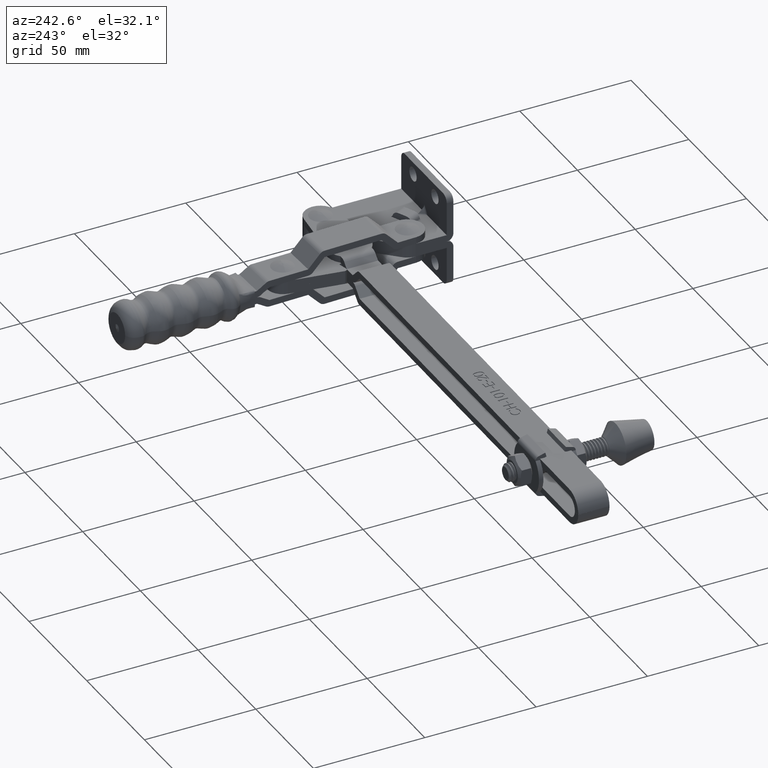
[diagram: clean part render]
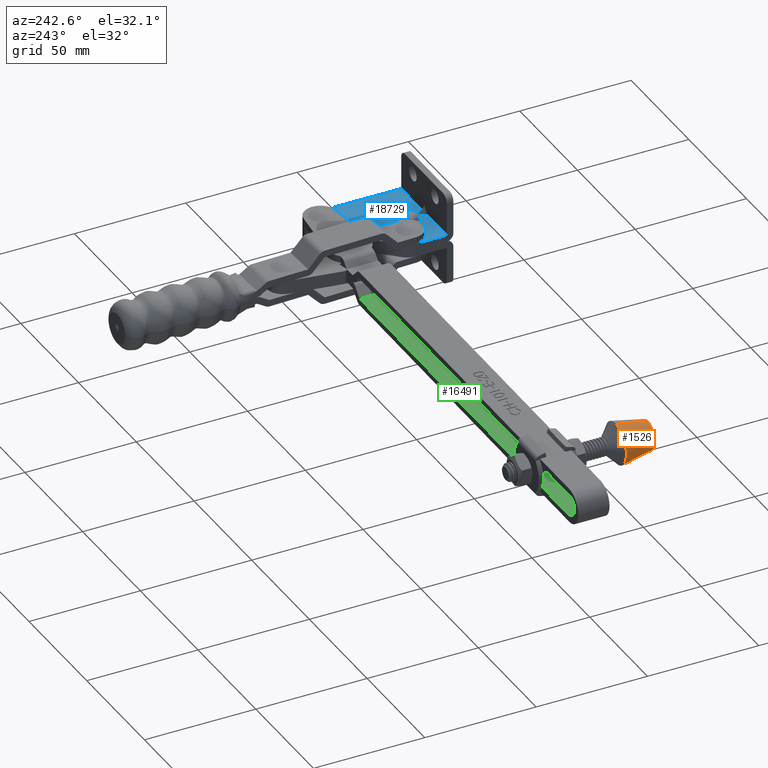
[diagram: same view with three faces highlighted in distinct colors, each labeled with its STEP entity id]
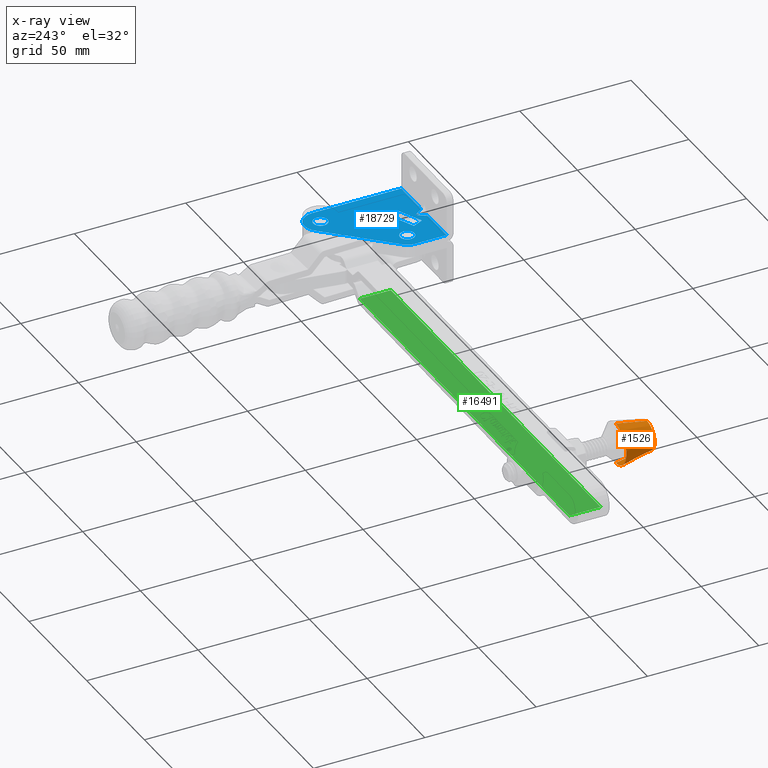
[diagram: x-ray of the same camera — body ghosted, the three highlighted faces saturated]
A machine part, auxiliary view with three faces highlighted in distinct colors.
The next image is the same camera in x-ray (body ghosted, the three faces saturated) — at least one of them is partly hidden behind the body in this view.
Their STEP definitions:

[orange] entity #1526 — the highlighted conical surface has half-angle 11.113 deg.
#1277 = EDGE_LOOP ( 'NONE', ( #1525, #1533, #1531, #1359 ) ) ;
#1330 = EDGE_CURVE ( 'NONE', #15270, #15269, #41257, .T. ) ;
#1349 = EDGE_CURVE ( 'NONE', #15265, #15273, #41279, .T. ) ;
#1359 = ORIENTED_EDGE ( 'NONE', *, *, #1349, .F. ) ;
#1525 = ORIENTED_EDGE ( 'NONE', *, *, #15263, .F. ) ;
#1526 = ADVANCED_FACE ( 'NONE', ( #41412 ), #38679, .T. ) ;
#1531 = ORIENTED_EDGE ( 'NONE', *, *, #15326, .T. ) ;
#1533 = ORIENTED_EDGE ( 'NONE', *, *, #1330, .T. ) ;
#10505 = CARTESIAN_POINT ( 'NONE',  ( 0.0000000000000000000, -6.500000000000000900, -8.500000000000001800 ) ) ;
#10531 = CARTESIAN_POINT ( 'NONE',  ( 1.132798289211310000E-015, -9.250000000000007100, 5.499999999999998200 ) ) ;
#10542 = CARTESIAN_POINT ( 'NONE',  ( 9.644093543285448100E-016, 6.500000000000000900, -8.500000000000062200 ) ) ;
#10551 = CARTESIAN_POINT ( 'NONE',  ( 0.0000000000000000000, 9.250000000000131500, 5.499999999999913000 ) ) ;
#10552 = DIRECTION ( 'NONE',  ( 2.360449196321649300E-017, 0.1927453040309370600, 0.9812488205210855300 ) ) ;
#10553 = VECTOR ( 'NONE', #10552, 1000.000000000000100 ) ;
#10554 = CARTESIAN_POINT ( 'NONE',  ( 1.132798289211310000E-015, 9.250000000000131500, 5.499999999999913000 ) ) ;
#10555 = LINE ( 'NONE', #10554, #10553 ) ;
#10683 = DIRECTION ( 'NONE',  ( 0.0000000000000000000, -0.1927453040309279900, 0.9812488205210874200 ) ) ;
#10684 = VECTOR ( 'NONE', #10683, 1000.000000000000000 ) ;
#10685 = CARTESIAN_POINT ( 'NONE',  ( 0.0000000000000000000, -9.250000000000003600, 5.499999999999998200 ) ) ;
#10686 = LINE ( 'NONE', #10685, #10684 ) ;
#15263 = EDGE_CURVE ( 'NONE', #15270, #15265, #10555, .T. ) ;
#15265 = VERTEX_POINT ( 'NONE', #10551 ) ;
#15269 = VERTEX_POINT ( 'NONE', #10505 ) ;
#15270 = VERTEX_POINT ( 'NONE', #10542 ) ;
#15273 = VERTEX_POINT ( 'NONE', #10531 ) ;
#15326 = EDGE_CURVE ( 'NONE', #15269, #15273, #10686, .T. ) ;
#38679 = CONICAL_SURFACE ( 'NONE', #38728, 9.250000000000067500, 0.1939591472598978500 ) ;
#38725 = DIRECTION ( 'NONE',  ( 0.0000000000000000000, -1.000000000000000000, 4.594672990425022900E-015 ) ) ;
#38726 = DIRECTION ( 'NONE',  ( -0.0000000000000000000, 4.625929269271484500E-015, 1.000000000000000000 ) ) ;
#38727 = CARTESIAN_POINT ( 'NONE',  ( 0.0000000000000000000, 6.476300976980058800E-014, 5.499999999999955600 ) ) ;
#38728 = AXIS2_PLACEMENT_3D ( 'NONE', #38727, #38726, #38725 ) ;
#41242 = CARTESIAN_POINT ( 'NONE',  ( 0.0000000000000000000, 6.476300976980058800E-014, 5.499999999999955600 ) ) ;
#41253 = DIRECTION ( 'NONE',  ( 0.0000000000000000000, -1.000000000000000000, 4.536969091016264500E-015 ) ) ;
#41254 = DIRECTION ( 'NONE',  ( -0.0000000000000000000, 4.625929269271484500E-015, 1.000000000000000000 ) ) ;
#41255 = CARTESIAN_POINT ( 'NONE',  ( 0.0000000000000000000, -1.355854680848614000E-028, -8.500000000000032000 ) ) ;
#41256 = AXIS2_PLACEMENT_3D ( 'NONE', #41255, #41254, #41253 ) ;
#41257 = CIRCLE ( 'NONE', #41256, 6.500000000000000900 ) ;
#41274 = DIRECTION ( 'NONE',  ( 0.0000000000000000000, -1.000000000000000000, 4.594672990425022900E-015 ) ) ;
#41275 = DIRECTION ( 'NONE',  ( -0.0000000000000000000, 4.625929269271484500E-015, 1.000000000000000000 ) ) ;
#41276 = AXIS2_PLACEMENT_3D ( 'NONE', #41242, #41275, #41274 ) ;
#41279 = CIRCLE ( 'NONE', #41276, 9.250000000000067500 ) ;
#41412 = FACE_OUTER_BOUND ( 'NONE', #1277, .T. ) ;

[blue] entity #18729 — the highlighted planar face has unit normal (0, 0, 1).
#13801 = ORIENTED_EDGE ( 'NONE', *, *, #18728, .F. ) ;
#18646 = ORIENTED_EDGE ( 'NONE', *, *, #18730, .F. ) ;
#18647 = EDGE_LOOP ( 'NONE', ( #18651, #13801 ) ) ;
#18648 = VERTEX_POINT ( 'NONE', #31158 ) ;
#18649 = VERTEX_POINT ( 'NONE', #31191 ) ;
#18650 = ORIENTED_EDGE ( 'NONE', *, *, #18699, .T. ) ;
#18651 = ORIENTED_EDGE ( 'NONE', *, *, #18656, .F. ) ;
#18654 = EDGE_CURVE ( 'NONE', #18695, #18703, #31173, .T. ) ;
#18656 = EDGE_CURVE ( 'NONE', #18665, #18658, #31186, .T. ) ;
#18658 = VERTEX_POINT ( 'NONE', #31225 ) ;
#18660 = ORIENTED_EDGE ( 'NONE', *, *, #18672, .F. ) ;
#18663 = VERTEX_POINT ( 'NONE', #31217 ) ;
#18665 = VERTEX_POINT ( 'NONE', #31226 ) ;
#18672 = EDGE_CURVE ( 'NONE', #18675, #18676, #31201, .T. ) ;
#18675 = VERTEX_POINT ( 'NONE', #31209 ) ;
#18676 = VERTEX_POINT ( 'NONE', #31243 ) ;
#18683 = EDGE_CURVE ( 'NONE', #18648, #18724, #31239, .T. ) ;
#18688 = EDGE_LOOP ( 'NONE', ( #18689, #18694, #18696, #18692 ) ) ;
#18689 = ORIENTED_EDGE ( 'NONE', *, *, #18770, .F. ) ;
#18691 = EDGE_CURVE ( 'NONE', #18709, #18703, #31237, .T. ) ;
#18692 = ORIENTED_EDGE ( 'NONE', *, *, #18697, .T. ) ;
#18694 = ORIENTED_EDGE ( 'NONE', *, *, #18691, .T. ) ;
#18695 = VERTEX_POINT ( 'NONE', #31284 ) ;
#18696 = ORIENTED_EDGE ( 'NONE', *, *, #18654, .F. ) ;
#18697 = EDGE_CURVE ( 'NONE', #18695, #18701, #31246, .T. ) ;
#18699 = EDGE_CURVE ( 'NONE', #18717, #18663, #31241, .T. ) ;
#18700 = VERTEX_POINT ( 'NONE', #31233 ) ;
#18701 = VERTEX_POINT ( 'NONE', #31244 ) ;
#18702 = EDGE_CURVE ( 'NONE', #18663, #18700, #31282, .T. ) ;
#18703 = VERTEX_POINT ( 'NONE', #31274 ) ;
#18704 = EDGE_CURVE ( 'NONE', #18707, #18724, #31268, .T. ) ;
#18705 = ORIENTED_EDGE ( 'NONE', *, *, #18702, .T. ) ;
#18706 = EDGE_CURVE ( 'NONE', #18700, #18649, #31261, .T. ) ;
#18707 = VERTEX_POINT ( 'NONE', #31270 ) ;
#18708 = EDGE_CURVE ( 'NONE', #18649, #18707, #31278, .T. ) ;
#18709 = VERTEX_POINT ( 'NONE', #31257 ) ;
#18710 = ORIENTED_EDGE ( 'NONE', *, *, #18708, .T. ) ;
#18711 = EDGE_LOOP ( 'NONE', ( #18712, #18713, #18718, #18720, #18650, #18705, #18721, #18710, #18773 ) ) ;
#18712 = ORIENTED_EDGE ( 'NONE', *, *, #18683, .F. ) ;
#18713 = ORIENTED_EDGE ( 'NONE', *, *, #18716, .T. ) ;
#18714 = VERTEX_POINT ( 'NONE', #31264 ) ;
#18715 = VERTEX_POINT ( 'NONE', #31263 ) ;
#18716 = EDGE_CURVE ( 'NONE', #18648, #18715, #31256, .T. ) ;
#18717 = VERTEX_POINT ( 'NONE', #31314 ) ;
#18718 = ORIENTED_EDGE ( 'NONE', *, *, #18719, .T. ) ;
#18719 = EDGE_CURVE ( 'NONE', #18715, #18714, #31309, .T. ) ;
#18720 = ORIENTED_EDGE ( 'NONE', *, *, #20692, .F. ) ;
#18721 = ORIENTED_EDGE ( 'NONE', *, *, #18706, .T. ) ;
#18724 = VERTEX_POINT ( 'NONE', #31301 ) ;
#18727 = EDGE_LOOP ( 'NONE', ( #18660, #18646 ) ) ;
#18728 = EDGE_CURVE ( 'NONE', #18658, #18665, #31316, .T. ) ;
#18729 = ADVANCED_FACE ( 'NONE', ( #31288, #31313, #31307, #31302 ), #31315, .T. ) ;
#18730 = EDGE_CURVE ( 'NONE', #18676, #18675, #31287, .T. ) ;
#18770 = EDGE_CURVE ( 'NONE', #18709, #18701, #31387, .T. ) ;
#18773 = ORIENTED_EDGE ( 'NONE', *, *, #18704, .T. ) ;
#20692 = EDGE_CURVE ( 'NONE', #18717, #18714, #37290, .T. ) ;
#31158 = CARTESIAN_POINT ( 'NONE',  ( -23.02842712474618700, 3.000000000000001300, 3.000000000000000000 ) ) ;
#31167 = DIRECTION ( 'NONE',  ( 1.000000000000000000, 0.0000000000000000000, 0.0000000000000000000 ) ) ;
#31170 = DIRECTION ( 'NONE',  ( 0.9063077870366484900, 0.4226182617407026100, -0.0000000000000000000 ) ) ;
#31171 = VECTOR ( 'NONE', #31170, 1000.000000000000100 ) ;
#31172 = CARTESIAN_POINT ( 'NONE',  ( -15.18090279316966300, 11.40102741728349200, 3.000000000000000000 ) ) ;
#31173 = LINE ( 'NONE', #31172, #31171 ) ;
#31174 = AXIS2_PLACEMENT_3D ( 'NONE', #31179, #31187, #31167 ) ;
#31179 = CARTESIAN_POINT ( 'NONE',  ( -7.199999999999998400, 42.99999999999999300, 3.000000000000000000 ) ) ;
#31186 = CIRCLE ( 'NONE', #31174, 3.199999999999999700 ) ;
#31187 = DIRECTION ( 'NONE',  ( 0.0000000000000000000, 0.0000000000000000000, 1.000000000000000000 ) ) ;
#31191 = CARTESIAN_POINT ( 'NONE',  ( -37.38999837585768700, 21.99038243610592500, 3.000000000000000000 ) ) ;
#31201 = CIRCLE ( 'NONE', #31215, 3.200000000000005100 ) ;
#31209 = CARTESIAN_POINT ( 'NONE',  ( -35.39999999999999900, 16.99999999999999600, 3.000000000000000000 ) ) ;
#31215 = AXIS2_PLACEMENT_3D ( 'NONE', #31250, #31249, #31248 ) ;
#31217 = CARTESIAN_POINT ( 'NONE',  ( 1.115117236397122900E-006, 42.99999999999999300, 3.000000000000000000 ) ) ;
#31225 = CARTESIAN_POINT ( 'NONE',  ( -3.999999999999997300, 42.99999999999999300, 3.000000000000000000 ) ) ;
#31226 = CARTESIAN_POINT ( 'NONE',  ( -10.40000000000000000, 42.99999999999999300, 3.000000000000000000 ) ) ;
#31230 = DIRECTION ( 'NONE',  ( 0.4226182617407026600, -0.9063077870366483800, -0.0000000000000000000 ) ) ;
#31231 = VECTOR ( 'NONE', #31230, 1000.000000000000100 ) ;
#31232 = CARTESIAN_POINT ( 'NONE',  ( -14.38971118854857100, 11.76996612158625200, 3.000000000000000000 ) ) ;
#31233 = CARTESIAN_POINT ( 'NONE',  ( -12.38999998348453600, 47.99038398190077000, 3.000000000000000000 ) ) ;
#31235 = DIRECTION ( 'NONE',  ( -1.000000000000000000, -1.210784149623465600E-016, 0.0000000000000000000 ) ) ;
#31236 = VECTOR ( 'NONE', #31235, 1000.000000000000000 ) ;
#31237 = LINE ( 'NONE', #31232, #31231 ) ;
#31238 = CARTESIAN_POINT ( 'NONE',  ( 7.779887695793893600E-008, 3.000000000000004000, 3.000000000000000000 ) ) ;
#31239 = LINE ( 'NONE', #31238, #31236 ) ;
#31241 = LINE ( 'NONE', #31277, #31276 ) ;
#31243 = CARTESIAN_POINT ( 'NONE',  ( -28.99999999999999300, 16.99999999999999600, 3.000000000000000000 ) ) ;
#31244 = CARTESIAN_POINT ( 'NONE',  ( -27.22941675897809300, 11.37350001425547300, 3.000000000000000000 ) ) ;
#31246 = LINE ( 'NONE', #31281, #31280 ) ;
#31248 = DIRECTION ( 'NONE',  ( 1.000000000000000000, 0.0000000000000000000, 0.0000000000000000000 ) ) ;
#31249 = DIRECTION ( 'NONE',  ( 0.0000000000000000000, 0.0000000000000000000, 1.000000000000000000 ) ) ;
#31250 = CARTESIAN_POINT ( 'NONE',  ( -32.20000000000000300, 16.99999999999999600, 3.000000000000000000 ) ) ;
#31253 = DIRECTION ( 'NONE',  ( 1.000000000000000000, 0.0000000000000000000, 0.0000000000000000000 ) ) ;
#31254 = DIRECTION ( 'NONE',  ( 0.0000000000000000000, 0.0000000000000000000, 1.000000000000000000 ) ) ;
#31255 = AXIS2_PLACEMENT_3D ( 'NONE', #31262, #31254, #31253 ) ;
#31256 = LINE ( 'NONE', #31312, #31311 ) ;
#31257 = CARTESIAN_POINT ( 'NONE',  ( -16.53110681821282000, 16.36220386895011800, 3.000000000000000000 ) ) ;
#31258 = DIRECTION ( 'NONE',  ( -0.6931086716813788000, -0.7208331077580126800, -0.0000000000000000000 ) ) ;
#31259 = VECTOR ( 'NONE', #31258, 1000.000000000000100 ) ;
#31260 = CARTESIAN_POINT ( 'NONE',  ( -37.38999837585768700, 21.99038243610592500, 3.000000000000000000 ) ) ;
#31261 = LINE ( 'NONE', #31260, #31259 ) ;
#31262 = CARTESIAN_POINT ( 'NONE',  ( -32.20000000000000300, 16.99999999999999600, 3.000000000000000000 ) ) ;
#31263 = CARTESIAN_POINT ( 'NONE',  ( -20.19999999999999600, 6.999999999999987600, 3.000000000000000000 ) ) ;
#31264 = CARTESIAN_POINT ( 'NONE',  ( -17.37157287525382900, 3.000000000000001800, 3.000000000000000000 ) ) ;
#31265 = DIRECTION ( 'NONE',  ( -0.0000000000000000000, -1.000000000000000000, -0.0000000000000000000 ) ) ;
#31266 = VECTOR ( 'NONE', #31265, 1000.000000000000000 ) ;
#31267 = CARTESIAN_POINT ( 'NONE',  ( -39.39999999999999900, -4.824949034060165900E-015, 3.000000000000000000 ) ) ;
#31268 = LINE ( 'NONE', #31267, #31266 ) ;
#31270 = CARTESIAN_POINT ( 'NONE',  ( -39.39999999999999900, 16.99999999999999600, 3.000000000000000000 ) ) ;
#31271 = DIRECTION ( 'NONE',  ( 1.000000000000000000, 0.0000000000000000000, 0.0000000000000000000 ) ) ;
#31272 = DIRECTION ( 'NONE',  ( 0.0000000000000000000, 0.0000000000000000000, 1.000000000000000000 ) ) ;
#31273 = CARTESIAN_POINT ( 'NONE',  ( -7.199999999999998400, 42.99999999999999300, 3.000000000000000000 ) ) ;
#31274 = CARTESIAN_POINT ( 'NONE',  ( -14.38971118854857100, 11.76996612158625200, 3.000000000000000000 ) ) ;
#31275 = DIRECTION ( 'NONE',  ( 0.0000000000000000000, 1.000000000000000000, 0.0000000000000000000 ) ) ;
#31276 = VECTOR ( 'NONE', #31275, 1000.000000000000000 ) ;
#31277 = CARTESIAN_POINT ( 'NONE',  ( 0.0000000000000000000, 0.0000000000000000000, 3.000000000000000000 ) ) ;
#31278 = CIRCLE ( 'NONE', #31255, 7.199999999999998400 ) ;
#31279 = DIRECTION ( 'NONE',  ( -0.4226182617407024900, 0.9063077870366484900, -0.0000000000000000000 ) ) ;
#31280 = VECTOR ( 'NONE', #31279, 1000.000000000000000 ) ;
#31281 = CARTESIAN_POINT ( 'NONE',  ( -27.22941675897809300, 11.37350001425547700, 3.000000000000000000 ) ) ;
#31282 = CIRCLE ( 'NONE', #31283, 7.200001115117234300 ) ;
#31283 = AXIS2_PLACEMENT_3D ( 'NONE', #31273, #31272, #31271 ) ;
#31284 = CARTESIAN_POINT ( 'NONE',  ( -25.08802112931384800, 6.781262266891610000, 3.000000000000000000 ) ) ;
#31287 = CIRCLE ( 'NONE', #31348, 3.200000000000005100 ) ;
#31288 = FACE_BOUND ( 'NONE', #18727, .T. ) ;
#31289 = DIRECTION ( 'NONE',  ( 1.000000000000000000, 0.0000000000000000000, 0.0000000000000000000 ) ) ;
#31290 = DIRECTION ( 'NONE',  ( 0.0000000000000000000, 0.0000000000000000000, 1.000000000000000000 ) ) ;
#31291 = CARTESIAN_POINT ( 'NONE',  ( -7.199999999999998400, 42.99999999999999300, 3.000000000000000000 ) ) ;
#31292 = AXIS2_PLACEMENT_3D ( 'NONE', #31304, #31347, #31346 ) ;
#31296 = AXIS2_PLACEMENT_3D ( 'NONE', #31291, #31290, #31289 ) ;
#31301 = CARTESIAN_POINT ( 'NONE',  ( -39.39999999999999900, 2.999999999999999100, 3.000000000000000000 ) ) ;
#31302 = FACE_BOUND ( 'NONE', #18688, .T. ) ;
#31304 = CARTESIAN_POINT ( 'NONE',  ( -7.199999999999998400, 42.99999999999999300, 3.000000000000000000 ) ) ;
#31305 = DIRECTION ( 'NONE',  ( 0.5773502691896237300, -0.8164965809277275900, -0.0000000000000000000 ) ) ;
#31306 = VECTOR ( 'NONE', #31305, 999.9999999999998900 ) ;
#31307 = FACE_OUTER_BOUND ( 'NONE', #18711, .T. ) ;
#31308 = CARTESIAN_POINT ( 'NONE',  ( -18.22859547920897000, 4.212012989773674200, 3.000000000000000000 ) ) ;
#31309 = LINE ( 'NONE', #31308, #31306 ) ;
#31310 = DIRECTION ( 'NONE',  ( 0.5773502691896271700, 0.8164965809277250400, -0.0000000000000000000 ) ) ;
#31311 = VECTOR ( 'NONE', #31310, 1000.000000000000100 ) ;
#31312 = CARTESIAN_POINT ( 'NONE',  ( -20.67140452079101800, 6.333333333333333000, 3.000000000000000000 ) ) ;
#31313 = FACE_BOUND ( 'NONE', #18647, .T. ) ;
#31314 = CARTESIAN_POINT ( 'NONE',  ( 0.0000000000000000000, 3.000000000000001800, 3.000000000000000000 ) ) ;
#31315 = PLANE ( 'NONE',  #31292 ) ;
#31316 = CIRCLE ( 'NONE', #31296, 3.199999999999999700 ) ;
#31340 = DIRECTION ( 'NONE',  ( 1.000000000000000000, 0.0000000000000000000, 0.0000000000000000000 ) ) ;
#31341 = DIRECTION ( 'NONE',  ( 0.0000000000000000000, 0.0000000000000000000, 1.000000000000000000 ) ) ;
#31342 = CARTESIAN_POINT ( 'NONE',  ( -32.20000000000000300, 16.99999999999999600, 3.000000000000000000 ) ) ;
#31346 = DIRECTION ( 'NONE',  ( 1.000000000000000000, 0.0000000000000000000, -0.0000000000000000000 ) ) ;
#31347 = DIRECTION ( 'NONE',  ( 0.0000000000000000000, 0.0000000000000000000, 1.000000000000000000 ) ) ;
#31348 = AXIS2_PLACEMENT_3D ( 'NONE', #31342, #31341, #31340 ) ;
#31387 = LINE ( 'NONE', #31437, #31436 ) ;
#31435 = DIRECTION ( 'NONE',  ( -0.9063077870366483800, -0.4226182617407028300, -0.0000000000000000000 ) ) ;
#31436 = VECTOR ( 'NONE', #31435, 1000.000000000000100 ) ;
#31437 = CARTESIAN_POINT ( 'NONE',  ( -26.43822515435700300, 11.74243871855823500, 3.000000000000000000 ) ) ;
#37280 = VECTOR ( 'NONE', #37288, 1000.000000000000000 ) ;
#37288 = DIRECTION ( 'NONE',  ( -1.000000000000000000, -1.210784149623465600E-016, 0.0000000000000000000 ) ) ;
#37289 = CARTESIAN_POINT ( 'NONE',  ( 7.779887695793893600E-008, 3.000000000000004000, 3.000000000000000000 ) ) ;
#37290 = LINE ( 'NONE', #37289, #37280 ) ;

[green] entity #16491 — the highlighted planar face has unit normal (0, -0, -1).
#16424 = VERTEX_POINT ( 'NONE', #22511 ) ;
#16425 = VERTEX_POINT ( 'NONE', #22500 ) ;
#16431 = EDGE_CURVE ( 'NONE', #16432, #16439, #22497, .T. ) ;
#16432 = VERTEX_POINT ( 'NONE', #22546 ) ;
#16433 = ORIENTED_EDGE ( 'NONE', *, *, #16431, .F. ) ;
#16436 = EDGE_LOOP ( 'NONE', ( #16433, #16493, #16496, #16483 ) ) ;
#16439 = VERTEX_POINT ( 'NONE', #22538 ) ;
#16483 = ORIENTED_EDGE ( 'NONE', *, *, #16497, .F. ) ;
#16491 = ADVANCED_FACE ( 'NONE', ( #22639 ), #22642, .F. ) ;
#16492 = EDGE_CURVE ( 'NONE', #16425, #16432, #21889, .T. ) ;
#16493 = ORIENTED_EDGE ( 'NONE', *, *, #16492, .F. ) ;
#16494 = EDGE_CURVE ( 'NONE', #16425, #16424, #21631, .T. ) ;
#16496 = ORIENTED_EDGE ( 'NONE', *, *, #16494, .T. ) ;
#16497 = EDGE_CURVE ( 'NONE', #16439, #16424, #22103, .T. ) ;
#21606 = DIRECTION ( 'NONE',  ( 1.000000000000000000, -1.137750684915277500E-016, 0.0000000000000000000 ) ) ;
#21630 = CARTESIAN_POINT ( 'NONE',  ( -237.8610499163514800, 10.70805132850666500, 20.00000000000000000 ) ) ;
#21631 = LINE ( 'NONE', #21630, #22362 ) ;
#21888 = CARTESIAN_POINT ( 'NONE',  ( -54.89757656742710200, 10.70805132850663800, 17.00000000000000000 ) ) ;
#21889 = LINE ( 'NONE', #21888, #22381 ) ;
#22102 = CARTESIAN_POINT ( 'NONE',  ( -54.89757656742710200, 10.70805132850663800, 2.999999999999999100 ) ) ;
#22103 = LINE ( 'NONE', #22102, #22339 ) ;
#22339 = VECTOR ( 'NONE', #22361, 1000.000000000000000 ) ;
#22361 = DIRECTION ( 'NONE',  ( -1.000000000000000000, 1.137750684915277500E-016, 5.811453576330275000E-018 ) ) ;
#22362 = VECTOR ( 'NONE', #22399, 1000.000000000000000 ) ;
#22381 = VECTOR ( 'NONE', #22404, 1000.000000000000000 ) ;
#22399 = DIRECTION ( 'NONE',  ( -0.0000000000000000000, 0.0000000000000000000, -1.000000000000000000 ) ) ;
#22404 = DIRECTION ( 'NONE',  ( 1.000000000000000000, -1.137750684915277500E-016, -1.549720953688073400E-017 ) ) ;
#22497 = LINE ( 'NONE', #22507, #22543 ) ;
#22500 = CARTESIAN_POINT ( 'NONE',  ( -237.8610499163514800, 10.70805132850666500, 17.00000000000000400 ) ) ;
#22506 = DIRECTION ( 'NONE',  ( -0.0000000000000000000, 0.0000000000000000000, -1.000000000000000000 ) ) ;
#22507 = CARTESIAN_POINT ( 'NONE',  ( -54.89757656742710200, 10.70805132850663800, 20.00000000000000000 ) ) ;
#22511 = CARTESIAN_POINT ( 'NONE',  ( -237.8610499163514800, 10.70805132850666500, 2.999999999999999100 ) ) ;
#22538 = CARTESIAN_POINT ( 'NONE',  ( -54.89757656742710200, 10.70805132850663800, 2.999999999999999100 ) ) ;
#22543 = VECTOR ( 'NONE', #22506, 1000.000000000000000 ) ;
#22546 = CARTESIAN_POINT ( 'NONE',  ( -54.89757656742710200, 10.70805132850663800, 17.00000000000000000 ) ) ;
#22634 = DIRECTION ( 'NONE',  ( 1.137750684915277500E-016, 1.000000000000000000, 0.0000000000000000000 ) ) ;
#22635 = CARTESIAN_POINT ( 'NONE',  ( -54.89757656742710200, 10.70805132850663800, 20.00000000000000000 ) ) ;
#22636 = AXIS2_PLACEMENT_3D ( 'NONE', #22635, #22634, #21606 ) ;
#22639 = FACE_OUTER_BOUND ( 'NONE', #16436, .T. ) ;
#22642 = PLANE ( 'NONE',  #22636 ) ;